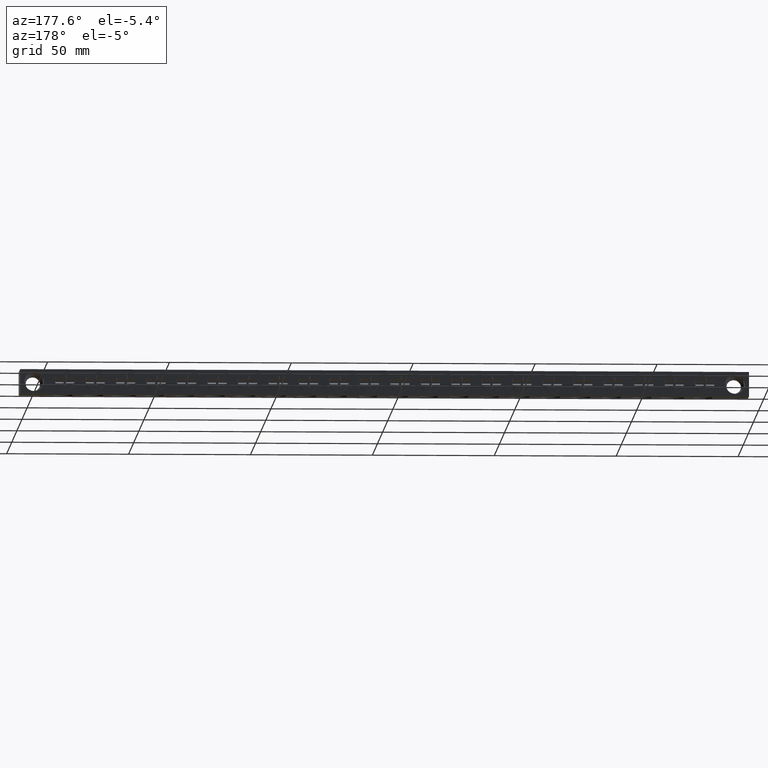
[diagram: clean part render]
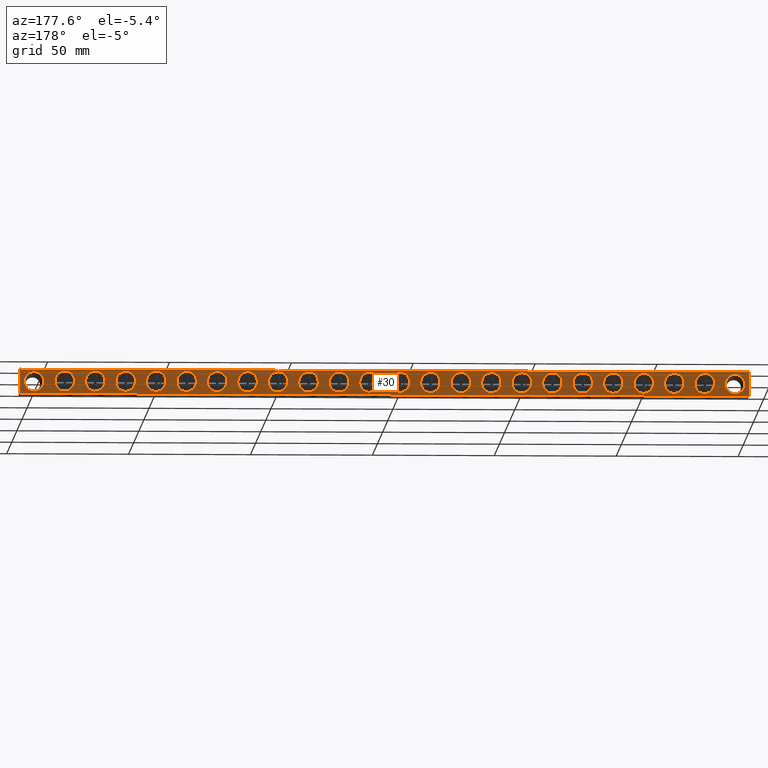
[diagram: same view with one face highlighted and labeled with its STEP entity id]
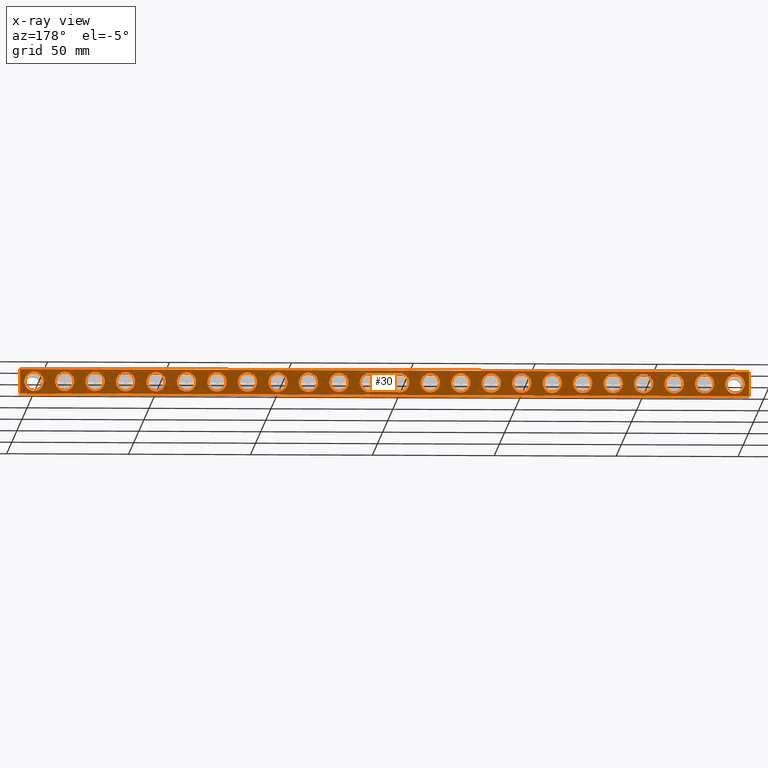
[diagram: x-ray of the same camera — body ghosted, the highlighted face saturated]
A machine part, auxiliary view. The second image highlights one B-rep face of the part: STEP entity #30.
The next image is the same camera in x-ray: the body ghosted, the highlighted face saturated — about 0% of this face is hidden behind the body in this view.
In plain terms, the highlighted planar face has unit normal (0, -1, 0).
Its self-contained STEP definition (entity closure, byte-faithful):
#30 = ADVANCED_FACE ( 'NONE', ( #3002, #2999, #3029, #2996, #3033, #2990, #3005, #2998, #3006, #3012, #2994, #3008, #3018, #3011, #3034, #3024, #2997, #3031, #3032, #3007, #3059, #3061, #3048, #3062, #3076 ), #3082, .F. ) ;
#170 = VERTEX_POINT ( 'NONE', #3101 ) ;
#305 = VERTEX_POINT ( 'NONE', #3154 ) ;
#312 = VERTEX_POINT ( 'NONE', #3176 ) ;
#321 = VERTEX_POINT ( 'NONE', #3177 ) ;
#331 = VERTEX_POINT ( 'NONE', #3157 ) ;
#335 = VERTEX_POINT ( 'NONE', #3200 ) ;
#361 = VERTEX_POINT ( 'NONE', #3256 ) ;
#364 = VERTEX_POINT ( 'NONE', #3253 ) ;
#365 = VERTEX_POINT ( 'NONE', #3240 ) ;
#372 = VERTEX_POINT ( 'NONE', #3220 ) ;
#387 = VERTEX_POINT ( 'NONE', #3259 ) ;
#389 = VERTEX_POINT ( 'NONE', #3269 ) ;
#400 = VERTEX_POINT ( 'NONE', #3247 ) ;
#405 = VERTEX_POINT ( 'NONE', #3262 ) ;
#418 = VERTEX_POINT ( 'NONE', #3312 ) ;
#421 = VERTEX_POINT ( 'NONE', #3288 ) ;
#423 = ORIENTED_EDGE ( 'NONE', *, *, #8522, .F. ) ;
#424 = ORIENTED_EDGE ( 'NONE', *, *, #8551, .F. ) ;
#426 = ORIENTED_EDGE ( 'NONE', *, *, #4077, .F. ) ;
#431 = ORIENTED_EDGE ( 'NONE', *, *, #12135, .F. ) ;
#433 = ORIENTED_EDGE ( 'NONE', *, *, #3741, .F. ) ;
#434 = ORIENTED_EDGE ( 'NONE', *, *, #8559, .F. ) ;
#435 = ORIENTED_EDGE ( 'NONE', *, *, #8538, .F. ) ;
#437 = VERTEX_POINT ( 'NONE', #3271 ) ;
#438 = ORIENTED_EDGE ( 'NONE', *, *, #13542, .F. ) ;
#439 = ORIENTED_EDGE ( 'NONE', *, *, #3715, .F. ) ;
#440 = ORIENTED_EDGE ( 'NONE', *, *, #3750, .F. ) ;
#441 = ORIENTED_EDGE ( 'NONE', *, *, #8557, .F. ) ;
#442 = ORIENTED_EDGE ( 'NONE', *, *, #8562, .F. ) ;
#443 = ORIENTED_EDGE ( 'NONE', *, *, #8521, .F. ) ;
#445 = ORIENTED_EDGE ( 'NONE', *, *, #3692, .F. ) ;
#453 = ORIENTED_EDGE ( 'NONE', *, *, #3689, .F. ) ;
#454 = ORIENTED_EDGE ( 'NONE', *, *, #12121, .F. ) ;
#455 = ORIENTED_EDGE ( 'NONE', *, *, #8536, .F. ) ;
#456 = ORIENTED_EDGE ( 'NONE', *, *, #8573, .F. ) ;
#458 = ORIENTED_EDGE ( 'NONE', *, *, #8561, .F. ) ;
#460 = VERTEX_POINT ( 'NONE', #3315 ) ;
#461 = ORIENTED_EDGE ( 'NONE', *, *, #3961, .F. ) ;
#464 = ORIENTED_EDGE ( 'NONE', *, *, #8541, .F. ) ;
#466 = ORIENTED_EDGE ( 'NONE', *, *, #8570, .F. ) ;
#468 = ORIENTED_EDGE ( 'NONE', *, *, #4043, .F. ) ;
#469 = ORIENTED_EDGE ( 'NONE', *, *, #3671, .F. ) ;
#470 = ORIENTED_EDGE ( 'NONE', *, *, #8530, .F. ) ;
#477 = ORIENTED_EDGE ( 'NONE', *, *, #3700, .F. ) ;
#481 = ORIENTED_EDGE ( 'NONE', *, *, #3727, .F. ) ;
#482 = ORIENTED_EDGE ( 'NONE', *, *, #3699, .F. ) ;
#486 = ORIENTED_EDGE ( 'NONE', *, *, #8524, .F. ) ;
#490 = ORIENTED_EDGE ( 'NONE', *, *, #3731, .F. ) ;
#496 = ORIENTED_EDGE ( 'NONE', *, *, #8537, .F. ) ;
#501 = ORIENTED_EDGE ( 'NONE', *, *, #8546, .F. ) ;
#502 = ORIENTED_EDGE ( 'NONE', *, *, #3738, .F. ) ;
#508 = ORIENTED_EDGE ( 'NONE', *, *, #4053, .F. ) ;
#515 = ORIENTED_EDGE ( 'NONE', *, *, #3722, .F. ) ;
#527 = ORIENTED_EDGE ( 'NONE', *, *, #8555, .F. ) ;
#528 = ORIENTED_EDGE ( 'NONE', *, *, #8572, .F. ) ;
#529 = ORIENTED_EDGE ( 'NONE', *, *, #4045, .F. ) ;
#535 = ORIENTED_EDGE ( 'NONE', *, *, #3661, .F. ) ;
#539 = ORIENTED_EDGE ( 'NONE', *, *, #8548, .F. ) ;
#547 = ORIENTED_EDGE ( 'NONE', *, *, #3648, .F. ) ;
#623 = VERTEX_POINT ( 'NONE', #3307 ) ;
#630 = VERTEX_POINT ( 'NONE', #3314 ) ;
#633 = VERTEX_POINT ( 'NONE', #3278 ) ;
#659 = VERTEX_POINT ( 'NONE', #3352 ) ;
#665 = VERTEX_POINT ( 'NONE', #3371 ) ;
#743 = VERTEX_POINT ( 'NONE', #3430 ) ;
#751 = VERTEX_POINT ( 'NONE', #3420 ) ;
#766 = VERTEX_POINT ( 'NONE', #2959 ) ;
#770 = VERTEX_POINT ( 'NONE', #14621 ) ;
#774 = VERTEX_POINT ( 'NONE', #13938 ) ;
#781 = VERTEX_POINT ( 'NONE', #13986 ) ;
#783 = VERTEX_POINT ( 'NONE', #13982 ) ;
#785 = VERTEX_POINT ( 'NONE', #13943 ) ;
#786 = VERTEX_POINT ( 'NONE', #13971 ) ;
#789 = VERTEX_POINT ( 'NONE', #13966 ) ;
#793 = VERTEX_POINT ( 'NONE', #13962 ) ;
#795 = VERTEX_POINT ( 'NONE', #13954 ) ;
#1313 = ORIENTED_EDGE ( 'NONE', *, *, #12106, .T. ) ;
#1322 = ORIENTED_EDGE ( 'NONE', *, *, #12117, .F. ) ;
#1331 = ORIENTED_EDGE ( 'NONE', *, *, #12119, .T. ) ;
#1346 = ORIENTED_EDGE ( 'NONE', *, *, #4052, .F. ) ;
#1347 = ORIENTED_EDGE ( 'NONE', *, *, #3931, .F. ) ;
#1352 = ORIENTED_EDGE ( 'NONE', *, *, #4035, .F. ) ;
#1356 = ORIENTED_EDGE ( 'NONE', *, *, #12112, .F. ) ;
#1361 = ORIENTED_EDGE ( 'NONE', *, *, #12151, .F. ) ;
#1621 = AXIS2_PLACEMENT_3D ( 'NONE', #9314, #9335, #9331 ) ;
#1630 = AXIS2_PLACEMENT_3D ( 'NONE', #9341, #9360, #9350 ) ;
#1632 = AXIS2_PLACEMENT_3D ( 'NONE', #9333, #9312, #9299 ) ;
#1633 = AXIS2_PLACEMENT_3D ( 'NONE', #9319, #9321, #9320 ) ;
#1636 = CIRCLE ( 'NONE', #1633, 3.960000000000000000 ) ;
#1643 = CIRCLE ( 'NONE', #1632, 3.960000000000000000 ) ;
#1646 = CIRCLE ( 'NONE', #1621, 3.960000000000000000 ) ;
#1661 = CIRCLE ( 'NONE', #1630, 3.960000000000000000 ) ;
#1670 = CIRCLE ( 'NONE', #1722, 3.960000000000000000 ) ;
#1671 = AXIS2_PLACEMENT_3D ( 'NONE', #9375, #9336, #9359 ) ;
#1672 = AXIS2_PLACEMENT_3D ( 'NONE', #9425, #9417, #9445 ) ;
#1675 = AXIS2_PLACEMENT_3D ( 'NONE', #9449, #9450, #9437 ) ;
#1678 = AXIS2_PLACEMENT_3D ( 'NONE', #9419, #9424, #9441 ) ;
#1682 = AXIS2_PLACEMENT_3D ( 'NONE', #9388, #9409, #9389 ) ;
#1690 = CIRCLE ( 'NONE', #1672, 3.960000000000000000 ) ;
#1691 = CIRCLE ( 'NONE', #1718, 3.960000000000000000 ) ;
#1693 = AXIS2_PLACEMENT_3D ( 'NONE', #9439, #9440, #9426 ) ;
#1694 = AXIS2_PLACEMENT_3D ( 'NONE', #9365, #9342, #9371 ) ;
#1698 = CIRCLE ( 'NONE', #1671, 3.960000000000000000 ) ;
#1703 = CIRCLE ( 'NONE', #1704, 3.960000000000000000 ) ;
#1704 = AXIS2_PLACEMENT_3D ( 'NONE', #9368, #9372, #9346 ) ;
#1707 = CIRCLE ( 'NONE', #1694, 3.960000000000000000 ) ;
#1710 = AXIS2_PLACEMENT_3D ( 'NONE', #9349, #9357, #9369 ) ;
#1712 = CIRCLE ( 'NONE', #1682, 3.960000000000000000 ) ;
#1716 = CIRCLE ( 'NONE', #1678, 3.960000000000000000 ) ;
#1717 = CIRCLE ( 'NONE', #1693, 3.960000000000000000 ) ;
#1718 = AXIS2_PLACEMENT_3D ( 'NONE', #9456, #9446, #9436 ) ;
#1721 = CIRCLE ( 'NONE', #1710, 3.960000000000000000 ) ;
#1722 = AXIS2_PLACEMENT_3D ( 'NONE', #9407, #9408, #9382 ) ;
#1724 = AXIS2_PLACEMENT_3D ( 'NONE', #9381, #9387, #9385 ) ;
#1729 = CIRCLE ( 'NONE', #1675, 3.960000000000000000 ) ;
#1730 = CIRCLE ( 'NONE', #1724, 3.960000000000000000 ) ;
#1736 = CIRCLE ( 'NONE', #1770, 3.960000000000000000 ) ;
#1748 = CIRCLE ( 'NONE', #1771, 3.960000000000000000 ) ;
#1758 = AXIS2_PLACEMENT_3D ( 'NONE', #9459, #9480, #9499 ) ;
#1770 = AXIS2_PLACEMENT_3D ( 'NONE', #9485, #9473, #9474 ) ;
#1771 = AXIS2_PLACEMENT_3D ( 'NONE', #9502, #9494, #9460 ) ;
#1778 = CIRCLE ( 'NONE', #1758, 3.960000000000000000 ) ;
#1797 = AXIS2_PLACEMENT_3D ( 'NONE', #8756, #8765, #8760 ) ;
#1798 = VECTOR ( 'NONE', #8658, 1000.000000000000000 ) ;
#1799 = VECTOR ( 'NONE', #8683, 1000.000000000000000 ) ;
#1812 = VECTOR ( 'NONE', #8721, 1000.000000000000000 ) ;
#1828 = CIRCLE ( 'NONE', #1797, 3.960000000000000000 ) ;
#1834 = AXIS2_PLACEMENT_3D ( 'NONE', #8731, #8741, #8727 ) ;
#1845 = VECTOR ( 'NONE', #8661, 1000.000000000000000 ) ;
#1847 = CIRCLE ( 'NONE', #1834, 3.960000000000000000 ) ;
#1858 = CIRCLE ( 'NONE', #1890, 4.000000000000035500 ) ;
#1865 = AXIS2_PLACEMENT_3D ( 'NONE', #8804, #8806, #8816 ) ;
#1872 = AXIS2_PLACEMENT_3D ( 'NONE', #8796, #8797, #8788 ) ;
#1877 = CIRCLE ( 'NONE', #1865, 4.000000000000035500 ) ;
#1890 = AXIS2_PLACEMENT_3D ( 'NONE', #8818, #8795, #8798 ) ;
#1907 = CIRCLE ( 'NONE', #1872, 3.960000000000000000 ) ;
#1979 = AXIS2_PLACEMENT_3D ( 'NONE', #5303, #5281, #5311 ) ;
#2027 = CIRCLE ( 'NONE', #1979, 3.960000000000000000 ) ;
#2505 = VERTEX_POINT ( 'NONE', #14063 ) ;
#2959 = CARTESIAN_POINT ( 'NONE',  ( 172.7500000000000300, 15.00000000000000000, -8.959999999999999100 ) ) ;
#2990 = FACE_BOUND ( 'NONE', #13156, .T. ) ;
#2994 = FACE_BOUND ( 'NONE', #13118, .T. ) ;
#2996 = FACE_BOUND ( 'NONE', #13154, .T. ) ;
#2997 = FACE_BOUND ( 'NONE', #13135, .T. ) ;
#2998 = FACE_BOUND ( 'NONE', #13144, .T. ) ;
#2999 = FACE_OUTER_BOUND ( 'NONE', #13122, .T. ) ;
#3002 = FACE_BOUND ( 'NONE', #13112, .T. ) ;
#3005 = FACE_BOUND ( 'NONE', #13174, .T. ) ;
#3006 = FACE_BOUND ( 'NONE', #13149, .T. ) ;
#3007 = FACE_BOUND ( 'NONE', #13169, .T. ) ;
#3008 = FACE_BOUND ( 'NONE', #13152, .T. ) ;
#3011 = FACE_BOUND ( 'NONE', #13153, .T. ) ;
#3012 = FACE_BOUND ( 'NONE', #13131, .T. ) ;
#3018 = FACE_BOUND ( 'NONE', #13150, .T. ) ;
#3024 = FACE_BOUND ( 'NONE', #13128, .T. ) ;
#3029 = FACE_BOUND ( 'NONE', #13167, .T. ) ;
#3031 = FACE_BOUND ( 'NONE', #13151, .T. ) ;
#3032 = FACE_BOUND ( 'NONE', #13155, .T. ) ;
#3033 = FACE_BOUND ( 'NONE', #13160, .T. ) ;
#3034 = FACE_BOUND ( 'NONE', #13223, .T. ) ;
#3048 = FACE_BOUND ( 'NONE', #13117, .T. ) ;
#3059 = FACE_BOUND ( 'NONE', #13114, .T. ) ;
#3061 = FACE_BOUND ( 'NONE', #13134, .T. ) ;
#3062 = FACE_BOUND ( 'NONE', #13172, .T. ) ;
#3076 = FACE_BOUND ( 'NONE', #13173, .T. ) ;
#3080 = CARTESIAN_POINT ( 'NONE',  ( 0.0000000000000000000, 15.00000000000000000, -10.00000000000000000 ) ) ;
#3082 = PLANE ( 'NONE',  #7064 ) ;
#3089 = DIRECTION ( 'NONE',  ( 0.0000000000000000000, -1.000000000000000000, 0.0000000000000000000 ) ) ;
#3095 = DIRECTION ( 'NONE',  ( 0.0000000000000000000, -0.0000000000000000000, -1.000000000000000000 ) ) ;
#3101 = CARTESIAN_POINT ( 'NONE',  ( 47.75000000000000700, 15.00000000000000000, -8.959999999999999100 ) ) ;
#3154 = CARTESIAN_POINT ( 'NONE',  ( 72.75000000000001400, 15.00000000000000000, -1.040000000000000000 ) ) ;
#3157 = CARTESIAN_POINT ( 'NONE',  ( 60.25000000000002800, 15.00000000000000000, -1.040000000000000000 ) ) ;
#3176 = CARTESIAN_POINT ( 'NONE',  ( 60.25000000000002800, 15.00000000000000000, -8.959999999999999100 ) ) ;
#3177 = CARTESIAN_POINT ( 'NONE',  ( 85.25000000000000000, 15.00000000000000000, -1.040000000000000000 ) ) ;
#3200 = CARTESIAN_POINT ( 'NONE',  ( 72.75000000000001400, 15.00000000000000000, -8.959999999999999100 ) ) ;
#3220 = CARTESIAN_POINT ( 'NONE',  ( 235.2500000000000300, 15.00000000000000000, -1.040000000000000000 ) ) ;
#3240 = CARTESIAN_POINT ( 'NONE',  ( 260.2500000000000600, 15.00000000000000000, -1.040000000000000000 ) ) ;
#3247 = CARTESIAN_POINT ( 'NONE',  ( 247.7500000000000300, 15.00000000000000000, -8.959999999999999100 ) ) ;
#3253 = CARTESIAN_POINT ( 'NONE',  ( 235.2500000000000300, 15.00000000000000000, -8.959999999999999100 ) ) ;
#3256 = CARTESIAN_POINT ( 'NONE',  ( 135.2500000000000000, 15.00000000000000000, -8.959999999999999100 ) ) ;
#3259 = CARTESIAN_POINT ( 'NONE',  ( 135.2500000000000000, 15.00000000000000000, -1.040000000000000000 ) ) ;
#3262 = CARTESIAN_POINT ( 'NONE',  ( 222.7500000000000000, 15.00000000000000000, -8.959999999999999100 ) ) ;
#3269 = CARTESIAN_POINT ( 'NONE',  ( 210.2500000000000000, 15.00000000000000000, -8.959999999999999100 ) ) ;
#3271 = CARTESIAN_POINT ( 'NONE',  ( 247.7500000000000300, 15.00000000000000000, -1.040000000000000000 ) ) ;
#3278 = CARTESIAN_POINT ( 'NONE',  ( 122.7500000000000100, 15.00000000000000000, -1.040000000000000000 ) ) ;
#3288 = CARTESIAN_POINT ( 'NONE',  ( 210.2500000000000000, 15.00000000000000000, -1.040000000000000000 ) ) ;
#3307 = CARTESIAN_POINT ( 'NONE',  ( 110.2500000000000100, 15.00000000000000000, -1.040000000000000000 ) ) ;
#3312 = CARTESIAN_POINT ( 'NONE',  ( 260.2500000000000600, 15.00000000000000000, -8.959999999999999100 ) ) ;
#3314 = CARTESIAN_POINT ( 'NONE',  ( 110.2500000000000100, 15.00000000000000000, -8.959999999999999100 ) ) ;
#3315 = CARTESIAN_POINT ( 'NONE',  ( 222.7500000000000000, 15.00000000000000000, -1.040000000000000000 ) ) ;
#3352 = CARTESIAN_POINT ( 'NONE',  ( 97.75000000000001400, 15.00000000000000000, -1.040000000000000000 ) ) ;
#3371 = CARTESIAN_POINT ( 'NONE',  ( 97.75000000000001400, 15.00000000000000000, -8.959999999999999100 ) ) ;
#3420 = CARTESIAN_POINT ( 'NONE',  ( 185.2500000000000300, 15.00000000000000000, -8.959999999999999100 ) ) ;
#3430 = CARTESIAN_POINT ( 'NONE',  ( 285.2500000000000000, 15.00000000000000000, -8.959999999999999100 ) ) ;
#3648 = EDGE_CURVE ( 'NONE', #387, #361, #7156, .T. ) ;
#3661 = EDGE_CURVE ( 'NONE', #437, #400, #7215, .T. ) ;
#3671 = EDGE_CURVE ( 'NONE', #633, #12516, #7248, .T. ) ;
#3689 = EDGE_CURVE ( 'NONE', #623, #630, #7211, .T. ) ;
#3692 = EDGE_CURVE ( 'NONE', #460, #405, #7289, .T. ) ;
#3699 = EDGE_CURVE ( 'NONE', #421, #389, #7257, .T. ) ;
#3700 = EDGE_CURVE ( 'NONE', #365, #418, #7261, .T. ) ;
#3715 = EDGE_CURVE ( 'NONE', #770, #781, #7262, .T. ) ;
#3722 = EDGE_CURVE ( 'NONE', #786, #743, #6335, .T. ) ;
#3727 = EDGE_CURVE ( 'NONE', #774, #793, #6380, .T. ) ;
#3731 = EDGE_CURVE ( 'NONE', #12687, #12634, #6361, .T. ) ;
#3738 = EDGE_CURVE ( 'NONE', #783, #795, #6384, .T. ) ;
#3741 = EDGE_CURVE ( 'NONE', #789, #766, #6377, .T. ) ;
#3750 = EDGE_CURVE ( 'NONE', #785, #751, #6381, .T. ) ;
#3931 = EDGE_CURVE ( 'NONE', #12440, #12447, #6592, .T. ) ;
#3961 = EDGE_CURVE ( 'NONE', #12534, #170, #6680, .T. ) ;
#3993 = EDGE_CURVE ( 'NONE', #12535, #12523, #6725, .T. ) ;
#4035 = EDGE_CURVE ( 'NONE', #12533, #12517, #6803, .T. ) ;
#4043 = EDGE_CURVE ( 'NONE', #659, #665, #6769, .T. ) ;
#4045 = EDGE_CURVE ( 'NONE', #321, #2505, #6799, .T. ) ;
#4052 = EDGE_CURVE ( 'NONE', #12543, #12524, #6770, .T. ) ;
#4053 = EDGE_CURVE ( 'NONE', #305, #335, #6789, .T. ) ;
#4077 = EDGE_CURVE ( 'NONE', #331, #312, #6827, .T. ) ;
#5281 = DIRECTION ( 'NONE',  ( 0.0000000000000000000, 1.000000000000000000, 0.0000000000000000000 ) ) ;
#5303 = CARTESIAN_POINT ( 'NONE',  ( 235.2500000000000300, 15.00000000000000000, -5.000000000000000000 ) ) ;
#5311 = DIRECTION ( 'NONE',  ( 0.0000000000000000000, 0.0000000000000000000, 1.000000000000000000 ) ) ;
#5557 = DIRECTION ( 'NONE',  ( 0.0000000000000000000, 0.0000000000000000000, 1.000000000000000000 ) ) ;
#6335 = CIRCLE ( 'NONE', #6359, 3.960000000000000000 ) ;
#6341 = AXIS2_PLACEMENT_3D ( 'NONE', #10657, #10646, #10660 ) ;
#6345 = AXIS2_PLACEMENT_3D ( 'NONE', #10585, #10587, #10586 ) ;
#6350 = AXIS2_PLACEMENT_3D ( 'NONE', #10623, #10619, #10613 ) ;
#6351 = AXIS2_PLACEMENT_3D ( 'NONE', #10591, #10602, #10596 ) ;
#6358 = AXIS2_PLACEMENT_3D ( 'NONE', #10626, #10621, #10625 ) ;
#6359 = AXIS2_PLACEMENT_3D ( 'NONE', #10578, #10583, #10570 ) ;
#6361 = CIRCLE ( 'NONE', #6351, 3.960000000000000000 ) ;
#6377 = CIRCLE ( 'NONE', #6350, 3.960000000000000000 ) ;
#6380 = CIRCLE ( 'NONE', #6345, 3.960000000000000000 ) ;
#6381 = CIRCLE ( 'NONE', #6341, 3.960000000000000000 ) ;
#6384 = CIRCLE ( 'NONE', #6358, 3.960000000000000000 ) ;
#6592 = CIRCLE ( 'NONE', #6595, 4.000000000000035500 ) ;
#6595 = AXIS2_PLACEMENT_3D ( 'NONE', #11824, #12027, #5557 ) ;
#6668 = AXIS2_PLACEMENT_3D ( 'NONE', #7605, #7619, #7639 ) ;
#6680 = CIRCLE ( 'NONE', #6668, 3.960000000000000000 ) ;
#6725 = CIRCLE ( 'NONE', #6728, 4.000000000000035500 ) ;
#6728 = AXIS2_PLACEMENT_3D ( 'NONE', #7683, #7691, #7679 ) ;
#6761 = AXIS2_PLACEMENT_3D ( 'NONE', #7889, #7886, #7894 ) ;
#6769 = CIRCLE ( 'NONE', #6761, 3.960000000000000000 ) ;
#6770 = CIRCLE ( 'NONE', #6782, 3.960000000000000000 ) ;
#6782 = AXIS2_PLACEMENT_3D ( 'NONE', #7868, #7854, #7870 ) ;
#6788 = AXIS2_PLACEMENT_3D ( 'NONE', #7866, #7858, #7867 ) ;
#6789 = CIRCLE ( 'NONE', #6788, 3.960000000000000000 ) ;
#6799 = CIRCLE ( 'NONE', #6813, 3.960000000000000000 ) ;
#6803 = CIRCLE ( 'NONE', #6822, 3.960000000000000000 ) ;
#6813 = AXIS2_PLACEMENT_3D ( 'NONE', #7862, #7873, #7869 ) ;
#6822 = AXIS2_PLACEMENT_3D ( 'NONE', #7831, #7844, #7838 ) ;
#6827 = CIRCLE ( 'NONE', #6828, 3.960000000000000000 ) ;
#6828 = AXIS2_PLACEMENT_3D ( 'NONE', #7954, #7978, #7958 ) ;
#7064 = AXIS2_PLACEMENT_3D ( 'NONE', #3080, #3089, #3095 ) ;
#7156 = CIRCLE ( 'NONE', #7222, 3.960000000000000000 ) ;
#7211 = CIRCLE ( 'NONE', #7232, 3.960000000000000000 ) ;
#7215 = CIRCLE ( 'NONE', #7223, 3.960000000000000000 ) ;
#7216 = AXIS2_PLACEMENT_3D ( 'NONE', #11874, #11875, #11887 ) ;
#7222 = AXIS2_PLACEMENT_3D ( 'NONE', #12094, #12092, #12093 ) ;
#7223 = AXIS2_PLACEMENT_3D ( 'NONE', #11858, #11828, #11841 ) ;
#7232 = AXIS2_PLACEMENT_3D ( 'NONE', #11937, #11912, #11931 ) ;
#7248 = CIRCLE ( 'NONE', #7216, 3.960000000000000000 ) ;
#7257 = CIRCLE ( 'NONE', #7283, 3.960000000000000000 ) ;
#7261 = CIRCLE ( 'NONE', #7284, 3.960000000000000000 ) ;
#7262 = CIRCLE ( 'NONE', #7268, 3.960000000000000000 ) ;
#7268 = AXIS2_PLACEMENT_3D ( 'NONE', #12024, #12028, #12022 ) ;
#7271 = AXIS2_PLACEMENT_3D ( 'NONE', #11940, #11945, #11910 ) ;
#7283 = AXIS2_PLACEMENT_3D ( 'NONE', #11962, #11980, #11954 ) ;
#7284 = AXIS2_PLACEMENT_3D ( 'NONE', #11967, #11968, #11958 ) ;
#7289 = CIRCLE ( 'NONE', #7271, 3.960000000000000000 ) ;
#7605 = CARTESIAN_POINT ( 'NONE',  ( 47.75000000000000700, 15.00000000000000000, -5.000000000000000000 ) ) ;
#7619 = DIRECTION ( 'NONE',  ( 0.0000000000000000000, 1.000000000000000000, 0.0000000000000000000 ) ) ;
#7639 = DIRECTION ( 'NONE',  ( 0.0000000000000000000, 0.0000000000000000000, 1.000000000000000000 ) ) ;
#7679 = DIRECTION ( 'NONE',  ( 0.0000000000000000000, 0.0000000000000000000, 1.000000000000000000 ) ) ;
#7683 = CARTESIAN_POINT ( 'NONE',  ( 297.7500000000000000, 15.00000000000000000, -5.000000000000000000 ) ) ;
#7691 = DIRECTION ( 'NONE',  ( 0.0000000000000000000, 1.000000000000000000, 0.0000000000000000000 ) ) ;
#7831 = CARTESIAN_POINT ( 'NONE',  ( 22.75000000000000700, 15.00000000000000000, -5.000000000000000000 ) ) ;
#7838 = DIRECTION ( 'NONE',  ( 0.0000000000000000000, 0.0000000000000000000, 1.000000000000000000 ) ) ;
#7844 = DIRECTION ( 'NONE',  ( 0.0000000000000000000, 1.000000000000000000, 0.0000000000000000000 ) ) ;
#7854 = DIRECTION ( 'NONE',  ( 0.0000000000000000000, 1.000000000000000000, 0.0000000000000000000 ) ) ;
#7858 = DIRECTION ( 'NONE',  ( 0.0000000000000000000, 1.000000000000000000, 0.0000000000000000000 ) ) ;
#7862 = CARTESIAN_POINT ( 'NONE',  ( 85.25000000000000000, 15.00000000000000000, -5.000000000000000000 ) ) ;
#7866 = CARTESIAN_POINT ( 'NONE',  ( 72.75000000000001400, 15.00000000000000000, -5.000000000000000000 ) ) ;
#7867 = DIRECTION ( 'NONE',  ( 0.0000000000000000000, 0.0000000000000000000, 1.000000000000000000 ) ) ;
#7868 = CARTESIAN_POINT ( 'NONE',  ( 35.25000000000000000, 15.00000000000000000, -5.000000000000000000 ) ) ;
#7869 = DIRECTION ( 'NONE',  ( 0.0000000000000000000, 0.0000000000000000000, 1.000000000000000000 ) ) ;
#7870 = DIRECTION ( 'NONE',  ( 0.0000000000000000000, 0.0000000000000000000, 1.000000000000000000 ) ) ;
#7873 = DIRECTION ( 'NONE',  ( 0.0000000000000000000, 1.000000000000000000, 0.0000000000000000000 ) ) ;
#7886 = DIRECTION ( 'NONE',  ( 0.0000000000000000000, 1.000000000000000000, 0.0000000000000000000 ) ) ;
#7889 = CARTESIAN_POINT ( 'NONE',  ( 97.75000000000001400, 15.00000000000000000, -5.000000000000000000 ) ) ;
#7894 = DIRECTION ( 'NONE',  ( 0.0000000000000000000, 0.0000000000000000000, 1.000000000000000000 ) ) ;
#7954 = CARTESIAN_POINT ( 'NONE',  ( 60.25000000000002800, 15.00000000000000000, -5.000000000000000000 ) ) ;
#7958 = DIRECTION ( 'NONE',  ( 0.0000000000000000000, 0.0000000000000000000, 1.000000000000000000 ) ) ;
#7978 = DIRECTION ( 'NONE',  ( 0.0000000000000000000, 1.000000000000000000, 0.0000000000000000000 ) ) ;
#8521 = EDGE_CURVE ( 'NONE', #793, #774, #1643, .T. ) ;
#8522 = EDGE_CURVE ( 'NONE', #400, #437, #1636, .T. ) ;
#8524 = EDGE_CURVE ( 'NONE', #12516, #633, #1646, .T. ) ;
#8530 = EDGE_CURVE ( 'NONE', #630, #623, #1661, .T. ) ;
#8536 = EDGE_CURVE ( 'NONE', #751, #785, #1707, .T. ) ;
#8537 = EDGE_CURVE ( 'NONE', #361, #387, #1721, .T. ) ;
#8538 = EDGE_CURVE ( 'NONE', #795, #783, #1698, .T. ) ;
#8541 = EDGE_CURVE ( 'NONE', #766, #789, #1703, .T. ) ;
#8546 = EDGE_CURVE ( 'NONE', #743, #786, #1670, .T. ) ;
#8548 = EDGE_CURVE ( 'NONE', #781, #770, #1730, .T. ) ;
#8551 = EDGE_CURVE ( 'NONE', #389, #421, #1712, .T. ) ;
#8555 = EDGE_CURVE ( 'NONE', #405, #460, #1690, .T. ) ;
#8557 = EDGE_CURVE ( 'NONE', #12634, #12687, #1691, .T. ) ;
#8559 = EDGE_CURVE ( 'NONE', #335, #305, #1729, .T. ) ;
#8561 = EDGE_CURVE ( 'NONE', #364, #372, #1716, .T. ) ;
#8562 = EDGE_CURVE ( 'NONE', #312, #331, #1717, .T. ) ;
#8570 = EDGE_CURVE ( 'NONE', #665, #659, #1736, .T. ) ;
#8572 = EDGE_CURVE ( 'NONE', #2505, #321, #1778, .T. ) ;
#8573 = EDGE_CURVE ( 'NONE', #418, #365, #1748, .T. ) ;
#8658 = DIRECTION ( 'NONE',  ( 0.0000000000000000000, -0.0000000000000000000, -1.000000000000000000 ) ) ;
#8661 = DIRECTION ( 'NONE',  ( 1.000000000000000000, -0.0000000000000000000, 0.0000000000000000000 ) ) ;
#8682 = CARTESIAN_POINT ( 'NONE',  ( 0.0000000000000000000, 15.00000000000000000, -10.00000000000000000 ) ) ;
#8683 = DIRECTION ( 'NONE',  ( 1.000000000000000000, 0.0000000000000000000, 0.0000000000000000000 ) ) ;
#8691 = LINE ( 'NONE', #8696, #1812 ) ;
#8692 = LINE ( 'NONE', #8682, #1799 ) ;
#8693 = CARTESIAN_POINT ( 'NONE',  ( 4.500000000000001800, 15.00000000000000000, -10.00000000000000000 ) ) ;
#8696 = CARTESIAN_POINT ( 'NONE',  ( 303.5000000000000000, 15.00000000000000000, 0.0000000000000000000 ) ) ;
#8698 = LINE ( 'NONE', #8693, #1798 ) ;
#8721 = DIRECTION ( 'NONE',  ( -0.0000000000000000000, -0.0000000000000000000, -1.000000000000000000 ) ) ;
#8727 = DIRECTION ( 'NONE',  ( 0.0000000000000000000, 0.0000000000000000000, 1.000000000000000000 ) ) ;
#8731 = CARTESIAN_POINT ( 'NONE',  ( 47.75000000000000700, 15.00000000000000000, -5.000000000000000000 ) ) ;
#8741 = DIRECTION ( 'NONE',  ( 0.0000000000000000000, 1.000000000000000000, 0.0000000000000000000 ) ) ;
#8756 = CARTESIAN_POINT ( 'NONE',  ( 35.25000000000000000, 15.00000000000000000, -5.000000000000000000 ) ) ;
#8760 = DIRECTION ( 'NONE',  ( 0.0000000000000000000, 0.0000000000000000000, 1.000000000000000000 ) ) ;
#8765 = DIRECTION ( 'NONE',  ( 0.0000000000000000000, 1.000000000000000000, 0.0000000000000000000 ) ) ;
#8788 = DIRECTION ( 'NONE',  ( 0.0000000000000000000, 0.0000000000000000000, 1.000000000000000000 ) ) ;
#8795 = DIRECTION ( 'NONE',  ( 0.0000000000000000000, 1.000000000000000000, 0.0000000000000000000 ) ) ;
#8796 = CARTESIAN_POINT ( 'NONE',  ( 22.75000000000000700, 15.00000000000000000, -5.000000000000000000 ) ) ;
#8797 = DIRECTION ( 'NONE',  ( 0.0000000000000000000, 1.000000000000000000, 0.0000000000000000000 ) ) ;
#8798 = DIRECTION ( 'NONE',  ( 0.0000000000000000000, 0.0000000000000000000, 1.000000000000000000 ) ) ;
#8804 = CARTESIAN_POINT ( 'NONE',  ( 10.25000000000000200, 15.00000000000000000, -5.000000000000000000 ) ) ;
#8806 = DIRECTION ( 'NONE',  ( 0.0000000000000000000, 1.000000000000000000, 0.0000000000000000000 ) ) ;
#8808 = CARTESIAN_POINT ( 'NONE',  ( 10.25000000000000200, 15.00000000000000000, -0.9999999999999644700 ) ) ;
#8816 = DIRECTION ( 'NONE',  ( 0.0000000000000000000, 0.0000000000000000000, 1.000000000000000000 ) ) ;
#8818 = CARTESIAN_POINT ( 'NONE',  ( 297.7500000000000000, 15.00000000000000000, -5.000000000000000000 ) ) ;
#8827 = CARTESIAN_POINT ( 'NONE',  ( 10.25000000000000200, 15.00000000000000000, -9.000000000000035500 ) ) ;
#8830 = CARTESIAN_POINT ( 'NONE',  ( 122.7500000000000100, 15.00000000000000000, -8.959999999999999100 ) ) ;
#8834 = CARTESIAN_POINT ( 'NONE',  ( 22.75000000000000700, 15.00000000000000000, -1.040000000000000000 ) ) ;
#8858 = CARTESIAN_POINT ( 'NONE',  ( 35.25000000000000000, 15.00000000000000000, -1.040000000000000000 ) ) ;
#8862 = CARTESIAN_POINT ( 'NONE',  ( 297.7500000000000000, 15.00000000000000000, -0.9999999999999644700 ) ) ;
#8866 = CARTESIAN_POINT ( 'NONE',  ( 297.7500000000000000, 15.00000000000000000, -9.000000000000035500 ) ) ;
#8873 = CARTESIAN_POINT ( 'NONE',  ( 22.75000000000000700, 15.00000000000000000, -8.959999999999999100 ) ) ;
#8874 = CARTESIAN_POINT ( 'NONE',  ( 47.75000000000000700, 15.00000000000000000, -1.040000000000000000 ) ) ;
#8876 = CARTESIAN_POINT ( 'NONE',  ( 35.25000000000000000, 15.00000000000000000, -8.959999999999999100 ) ) ;
#8908 = CARTESIAN_POINT ( 'NONE',  ( 147.7500000000000000, 15.00000000000000000, -8.959999999999999100 ) ) ;
#8957 = CARTESIAN_POINT ( 'NONE',  ( 147.7500000000000000, 15.00000000000000000, -1.040000000000000000 ) ) ;
#9037 = CARTESIAN_POINT ( 'NONE',  ( 4.500000000000001800, 15.00000000000000000, 0.0000000000000000000 ) ) ;
#9040 = CARTESIAN_POINT ( 'NONE',  ( 4.500000000000001800, 15.00000000000000000, -10.00000000000000000 ) ) ;
#9066 = CARTESIAN_POINT ( 'NONE',  ( 303.5000000000000000, 15.00000000000000000, -10.00000000000000000 ) ) ;
#9080 = CARTESIAN_POINT ( 'NONE',  ( 303.5000000000000000, 15.00000000000000000, 0.0000000000000000000 ) ) ;
#9299 = DIRECTION ( 'NONE',  ( 0.0000000000000000000, 0.0000000000000000000, 1.000000000000000000 ) ) ;
#9312 = DIRECTION ( 'NONE',  ( 0.0000000000000000000, 1.000000000000000000, 0.0000000000000000000 ) ) ;
#9314 = CARTESIAN_POINT ( 'NONE',  ( 122.7500000000000100, 15.00000000000000000, -5.000000000000000000 ) ) ;
#9319 = CARTESIAN_POINT ( 'NONE',  ( 247.7500000000000300, 15.00000000000000000, -5.000000000000000000 ) ) ;
#9320 = DIRECTION ( 'NONE',  ( 0.0000000000000000000, 0.0000000000000000000, 1.000000000000000000 ) ) ;
#9321 = DIRECTION ( 'NONE',  ( 0.0000000000000000000, 1.000000000000000000, 0.0000000000000000000 ) ) ;
#9331 = DIRECTION ( 'NONE',  ( 0.0000000000000000000, 0.0000000000000000000, 1.000000000000000000 ) ) ;
#9333 = CARTESIAN_POINT ( 'NONE',  ( 160.2500000000000000, 15.00000000000000000, -5.000000000000000000 ) ) ;
#9335 = DIRECTION ( 'NONE',  ( 0.0000000000000000000, 1.000000000000000000, 0.0000000000000000000 ) ) ;
#9336 = DIRECTION ( 'NONE',  ( 0.0000000000000000000, 1.000000000000000000, 0.0000000000000000000 ) ) ;
#9341 = CARTESIAN_POINT ( 'NONE',  ( 110.2500000000000100, 15.00000000000000000, -5.000000000000000000 ) ) ;
#9342 = DIRECTION ( 'NONE',  ( 0.0000000000000000000, 1.000000000000000000, 0.0000000000000000000 ) ) ;
#9346 = DIRECTION ( 'NONE',  ( 0.0000000000000000000, 0.0000000000000000000, 1.000000000000000000 ) ) ;
#9349 = CARTESIAN_POINT ( 'NONE',  ( 135.2500000000000000, 15.00000000000000000, -5.000000000000000000 ) ) ;
#9350 = DIRECTION ( 'NONE',  ( 0.0000000000000000000, 0.0000000000000000000, 1.000000000000000000 ) ) ;
#9357 = DIRECTION ( 'NONE',  ( 0.0000000000000000000, 1.000000000000000000, 0.0000000000000000000 ) ) ;
#9359 = DIRECTION ( 'NONE',  ( 0.0000000000000000000, 0.0000000000000000000, 1.000000000000000000 ) ) ;
#9360 = DIRECTION ( 'NONE',  ( 0.0000000000000000000, 1.000000000000000000, 0.0000000000000000000 ) ) ;
#9365 = CARTESIAN_POINT ( 'NONE',  ( 185.2500000000000300, 15.00000000000000000, -5.000000000000000000 ) ) ;
#9368 = CARTESIAN_POINT ( 'NONE',  ( 172.7500000000000300, 15.00000000000000000, -5.000000000000000000 ) ) ;
#9369 = DIRECTION ( 'NONE',  ( 0.0000000000000000000, 0.0000000000000000000, 1.000000000000000000 ) ) ;
#9371 = DIRECTION ( 'NONE',  ( 0.0000000000000000000, 0.0000000000000000000, 1.000000000000000000 ) ) ;
#9372 = DIRECTION ( 'NONE',  ( 0.0000000000000000000, 1.000000000000000000, 0.0000000000000000000 ) ) ;
#9375 = CARTESIAN_POINT ( 'NONE',  ( 197.7500000000000300, 15.00000000000000000, -5.000000000000000000 ) ) ;
#9381 = CARTESIAN_POINT ( 'NONE',  ( 272.7500000000000000, 15.00000000000000000, -5.000000000000000000 ) ) ;
#9382 = DIRECTION ( 'NONE',  ( 0.0000000000000000000, 0.0000000000000000000, 1.000000000000000000 ) ) ;
#9385 = DIRECTION ( 'NONE',  ( 0.0000000000000000000, 0.0000000000000000000, 1.000000000000000000 ) ) ;
#9387 = DIRECTION ( 'NONE',  ( 0.0000000000000000000, 1.000000000000000000, 0.0000000000000000000 ) ) ;
#9388 = CARTESIAN_POINT ( 'NONE',  ( 210.2500000000000000, 15.00000000000000000, -5.000000000000000000 ) ) ;
#9389 = DIRECTION ( 'NONE',  ( 0.0000000000000000000, 0.0000000000000000000, 1.000000000000000000 ) ) ;
#9407 = CARTESIAN_POINT ( 'NONE',  ( 285.2500000000000000, 15.00000000000000000, -5.000000000000000000 ) ) ;
#9408 = DIRECTION ( 'NONE',  ( 0.0000000000000000000, 1.000000000000000000, 0.0000000000000000000 ) ) ;
#9409 = DIRECTION ( 'NONE',  ( 0.0000000000000000000, 1.000000000000000000, 0.0000000000000000000 ) ) ;
#9417 = DIRECTION ( 'NONE',  ( 0.0000000000000000000, 1.000000000000000000, 0.0000000000000000000 ) ) ;
#9419 = CARTESIAN_POINT ( 'NONE',  ( 235.2500000000000300, 15.00000000000000000, -5.000000000000000000 ) ) ;
#9424 = DIRECTION ( 'NONE',  ( 0.0000000000000000000, 1.000000000000000000, 0.0000000000000000000 ) ) ;
#9425 = CARTESIAN_POINT ( 'NONE',  ( 222.7500000000000000, 15.00000000000000000, -5.000000000000000000 ) ) ;
#9426 = DIRECTION ( 'NONE',  ( 0.0000000000000000000, 0.0000000000000000000, 1.000000000000000000 ) ) ;
#9436 = DIRECTION ( 'NONE',  ( 0.0000000000000000000, 0.0000000000000000000, 1.000000000000000000 ) ) ;
#9437 = DIRECTION ( 'NONE',  ( 0.0000000000000000000, 0.0000000000000000000, 1.000000000000000000 ) ) ;
#9439 = CARTESIAN_POINT ( 'NONE',  ( 60.25000000000002800, 15.00000000000000000, -5.000000000000000000 ) ) ;
#9440 = DIRECTION ( 'NONE',  ( 0.0000000000000000000, 1.000000000000000000, 0.0000000000000000000 ) ) ;
#9441 = DIRECTION ( 'NONE',  ( 0.0000000000000000000, 0.0000000000000000000, 1.000000000000000000 ) ) ;
#9445 = DIRECTION ( 'NONE',  ( 0.0000000000000000000, 0.0000000000000000000, 1.000000000000000000 ) ) ;
#9446 = DIRECTION ( 'NONE',  ( 0.0000000000000000000, 1.000000000000000000, 0.0000000000000000000 ) ) ;
#9449 = CARTESIAN_POINT ( 'NONE',  ( 72.75000000000001400, 15.00000000000000000, -5.000000000000000000 ) ) ;
#9450 = DIRECTION ( 'NONE',  ( 0.0000000000000000000, 1.000000000000000000, 0.0000000000000000000 ) ) ;
#9456 = CARTESIAN_POINT ( 'NONE',  ( 147.7500000000000000, 15.00000000000000000, -5.000000000000000000 ) ) ;
#9459 = CARTESIAN_POINT ( 'NONE',  ( 85.25000000000000000, 15.00000000000000000, -5.000000000000000000 ) ) ;
#9460 = DIRECTION ( 'NONE',  ( 0.0000000000000000000, 0.0000000000000000000, 1.000000000000000000 ) ) ;
#9473 = DIRECTION ( 'NONE',  ( 0.0000000000000000000, 1.000000000000000000, 0.0000000000000000000 ) ) ;
#9474 = DIRECTION ( 'NONE',  ( 0.0000000000000000000, 0.0000000000000000000, 1.000000000000000000 ) ) ;
#9480 = DIRECTION ( 'NONE',  ( 0.0000000000000000000, 1.000000000000000000, 0.0000000000000000000 ) ) ;
#9485 = CARTESIAN_POINT ( 'NONE',  ( 97.75000000000001400, 15.00000000000000000, -5.000000000000000000 ) ) ;
#9494 = DIRECTION ( 'NONE',  ( 0.0000000000000000000, 1.000000000000000000, 0.0000000000000000000 ) ) ;
#9499 = DIRECTION ( 'NONE',  ( 0.0000000000000000000, 0.0000000000000000000, 1.000000000000000000 ) ) ;
#9502 = CARTESIAN_POINT ( 'NONE',  ( 260.2500000000000600, 15.00000000000000000, -5.000000000000000000 ) ) ;
#9730 = LINE ( 'NONE', #9735, #1845 ) ;
#9735 = CARTESIAN_POINT ( 'NONE',  ( 0.0000000000000000000, 15.00000000000000000, 0.0000000000000000000 ) ) ;
#10570 = DIRECTION ( 'NONE',  ( 0.0000000000000000000, 0.0000000000000000000, 1.000000000000000000 ) ) ;
#10578 = CARTESIAN_POINT ( 'NONE',  ( 285.2500000000000000, 15.00000000000000000, -5.000000000000000000 ) ) ;
#10583 = DIRECTION ( 'NONE',  ( 0.0000000000000000000, 1.000000000000000000, 0.0000000000000000000 ) ) ;
#10585 = CARTESIAN_POINT ( 'NONE',  ( 160.2500000000000000, 15.00000000000000000, -5.000000000000000000 ) ) ;
#10586 = DIRECTION ( 'NONE',  ( 0.0000000000000000000, 0.0000000000000000000, 1.000000000000000000 ) ) ;
#10587 = DIRECTION ( 'NONE',  ( 0.0000000000000000000, 1.000000000000000000, 0.0000000000000000000 ) ) ;
#10591 = CARTESIAN_POINT ( 'NONE',  ( 147.7500000000000000, 15.00000000000000000, -5.000000000000000000 ) ) ;
#10596 = DIRECTION ( 'NONE',  ( 0.0000000000000000000, 0.0000000000000000000, 1.000000000000000000 ) ) ;
#10602 = DIRECTION ( 'NONE',  ( 0.0000000000000000000, 1.000000000000000000, 0.0000000000000000000 ) ) ;
#10613 = DIRECTION ( 'NONE',  ( 0.0000000000000000000, 0.0000000000000000000, 1.000000000000000000 ) ) ;
#10619 = DIRECTION ( 'NONE',  ( 0.0000000000000000000, 1.000000000000000000, 0.0000000000000000000 ) ) ;
#10621 = DIRECTION ( 'NONE',  ( 0.0000000000000000000, 1.000000000000000000, 0.0000000000000000000 ) ) ;
#10623 = CARTESIAN_POINT ( 'NONE',  ( 172.7500000000000300, 15.00000000000000000, -5.000000000000000000 ) ) ;
#10625 = DIRECTION ( 'NONE',  ( 0.0000000000000000000, 0.0000000000000000000, 1.000000000000000000 ) ) ;
#10626 = CARTESIAN_POINT ( 'NONE',  ( 197.7500000000000300, 15.00000000000000000, -5.000000000000000000 ) ) ;
#10646 = DIRECTION ( 'NONE',  ( 0.0000000000000000000, 1.000000000000000000, 0.0000000000000000000 ) ) ;
#10657 = CARTESIAN_POINT ( 'NONE',  ( 185.2500000000000300, 15.00000000000000000, -5.000000000000000000 ) ) ;
#10660 = DIRECTION ( 'NONE',  ( 0.0000000000000000000, 0.0000000000000000000, 1.000000000000000000 ) ) ;
#11824 = CARTESIAN_POINT ( 'NONE',  ( 10.25000000000000200, 15.00000000000000000, -5.000000000000000000 ) ) ;
#11828 = DIRECTION ( 'NONE',  ( 0.0000000000000000000, 1.000000000000000000, 0.0000000000000000000 ) ) ;
#11841 = DIRECTION ( 'NONE',  ( 0.0000000000000000000, 0.0000000000000000000, 1.000000000000000000 ) ) ;
#11858 = CARTESIAN_POINT ( 'NONE',  ( 247.7500000000000300, 15.00000000000000000, -5.000000000000000000 ) ) ;
#11874 = CARTESIAN_POINT ( 'NONE',  ( 122.7500000000000100, 15.00000000000000000, -5.000000000000000000 ) ) ;
#11875 = DIRECTION ( 'NONE',  ( 0.0000000000000000000, 1.000000000000000000, 0.0000000000000000000 ) ) ;
#11887 = DIRECTION ( 'NONE',  ( 0.0000000000000000000, 0.0000000000000000000, 1.000000000000000000 ) ) ;
#11910 = DIRECTION ( 'NONE',  ( 0.0000000000000000000, 0.0000000000000000000, 1.000000000000000000 ) ) ;
#11912 = DIRECTION ( 'NONE',  ( 0.0000000000000000000, 1.000000000000000000, 0.0000000000000000000 ) ) ;
#11931 = DIRECTION ( 'NONE',  ( 0.0000000000000000000, 0.0000000000000000000, 1.000000000000000000 ) ) ;
#11937 = CARTESIAN_POINT ( 'NONE',  ( 110.2500000000000100, 15.00000000000000000, -5.000000000000000000 ) ) ;
#11940 = CARTESIAN_POINT ( 'NONE',  ( 222.7500000000000000, 15.00000000000000000, -5.000000000000000000 ) ) ;
#11945 = DIRECTION ( 'NONE',  ( 0.0000000000000000000, 1.000000000000000000, 0.0000000000000000000 ) ) ;
#11954 = DIRECTION ( 'NONE',  ( 0.0000000000000000000, 0.0000000000000000000, 1.000000000000000000 ) ) ;
#11958 = DIRECTION ( 'NONE',  ( 0.0000000000000000000, 0.0000000000000000000, 1.000000000000000000 ) ) ;
#11962 = CARTESIAN_POINT ( 'NONE',  ( 210.2500000000000000, 15.00000000000000000, -5.000000000000000000 ) ) ;
#11967 = CARTESIAN_POINT ( 'NONE',  ( 260.2500000000000600, 15.00000000000000000, -5.000000000000000000 ) ) ;
#11968 = DIRECTION ( 'NONE',  ( 0.0000000000000000000, 1.000000000000000000, 0.0000000000000000000 ) ) ;
#11980 = DIRECTION ( 'NONE',  ( 0.0000000000000000000, 1.000000000000000000, 0.0000000000000000000 ) ) ;
#12022 = DIRECTION ( 'NONE',  ( 0.0000000000000000000, 0.0000000000000000000, 1.000000000000000000 ) ) ;
#12024 = CARTESIAN_POINT ( 'NONE',  ( 272.7500000000000000, 15.00000000000000000, -5.000000000000000000 ) ) ;
#12027 = DIRECTION ( 'NONE',  ( 0.0000000000000000000, 1.000000000000000000, 0.0000000000000000000 ) ) ;
#12028 = DIRECTION ( 'NONE',  ( 0.0000000000000000000, 1.000000000000000000, 0.0000000000000000000 ) ) ;
#12092 = DIRECTION ( 'NONE',  ( 0.0000000000000000000, 1.000000000000000000, 0.0000000000000000000 ) ) ;
#12093 = DIRECTION ( 'NONE',  ( 0.0000000000000000000, 0.0000000000000000000, 1.000000000000000000 ) ) ;
#12094 = CARTESIAN_POINT ( 'NONE',  ( 135.2500000000000000, 15.00000000000000000, -5.000000000000000000 ) ) ;
#12106 = EDGE_CURVE ( 'NONE', #13257, #13278, #9730, .T. ) ;
#12112 = EDGE_CURVE ( 'NONE', #13255, #13258, #8692, .T. ) ;
#12117 = EDGE_CURVE ( 'NONE', #13257, #13255, #8698, .T. ) ;
#12119 = EDGE_CURVE ( 'NONE', #13278, #13258, #8691, .T. ) ;
#12121 = EDGE_CURVE ( 'NONE', #170, #12534, #1847, .T. ) ;
#12135 = EDGE_CURVE ( 'NONE', #12524, #12543, #1828, .T. ) ;
#12146 = EDGE_CURVE ( 'NONE', #12523, #12535, #1858, .T. ) ;
#12151 = EDGE_CURVE ( 'NONE', #12447, #12440, #1877, .T. ) ;
#12152 = EDGE_CURVE ( 'NONE', #12517, #12533, #1907, .T. ) ;
#12440 = VERTEX_POINT ( 'NONE', #8827 ) ;
#12447 = VERTEX_POINT ( 'NONE', #8808 ) ;
#12516 = VERTEX_POINT ( 'NONE', #8830 ) ;
#12517 = VERTEX_POINT ( 'NONE', #8873 ) ;
#12523 = VERTEX_POINT ( 'NONE', #8862 ) ;
#12524 = VERTEX_POINT ( 'NONE', #8876 ) ;
#12533 = VERTEX_POINT ( 'NONE', #8834 ) ;
#12534 = VERTEX_POINT ( 'NONE', #8874 ) ;
#12535 = VERTEX_POINT ( 'NONE', #8866 ) ;
#12543 = VERTEX_POINT ( 'NONE', #8858 ) ;
#12634 = VERTEX_POINT ( 'NONE', #8908 ) ;
#12687 = VERTEX_POINT ( 'NONE', #8957 ) ;
#13112 = EDGE_LOOP ( 'NONE', ( #1361, #1347 ) ) ;
#13114 = EDGE_LOOP ( 'NONE', ( #502, #435 ) ) ;
#13117 = EDGE_LOOP ( 'NONE', ( #433, #464 ) ) ;
#13118 = EDGE_LOOP ( 'NONE', ( #453, #470 ) ) ;
#13122 = EDGE_LOOP ( 'NONE', ( #1331, #1356, #1322, #1313 ) ) ;
#13128 = EDGE_LOOP ( 'NONE', ( #482, #424 ) ) ;
#13131 = EDGE_LOOP ( 'NONE', ( #468, #466 ) ) ;
#13134 = EDGE_LOOP ( 'NONE', ( #440, #455 ) ) ;
#13135 = EDGE_LOOP ( 'NONE', ( #445, #527 ) ) ;
#13144 = EDGE_LOOP ( 'NONE', ( #508, #434 ) ) ;
#13149 = EDGE_LOOP ( 'NONE', ( #529, #528 ) ) ;
#13150 = EDGE_LOOP ( 'NONE', ( #547, #496 ) ) ;
#13151 = EDGE_LOOP ( 'NONE', ( #535, #423 ) ) ;
#13152 = EDGE_LOOP ( 'NONE', ( #469, #486 ) ) ;
#13153 = EDGE_LOOP ( 'NONE', ( #477, #456 ) ) ;
#13154 = EDGE_LOOP ( 'NONE', ( #1352, #13364 ) ) ;
#13155 = EDGE_LOOP ( 'NONE', ( #439, #539 ) ) ;
#13156 = EDGE_LOOP ( 'NONE', ( #461, #454 ) ) ;
#13160 = EDGE_LOOP ( 'NONE', ( #1346, #431 ) ) ;
#13167 = EDGE_LOOP ( 'NONE', ( #13388, #13377 ) ) ;
#13169 = EDGE_LOOP ( 'NONE', ( #515, #501 ) ) ;
#13172 = EDGE_LOOP ( 'NONE', ( #481, #443 ) ) ;
#13173 = EDGE_LOOP ( 'NONE', ( #490, #441 ) ) ;
#13174 = EDGE_LOOP ( 'NONE', ( #426, #442 ) ) ;
#13223 = EDGE_LOOP ( 'NONE', ( #438, #458 ) ) ;
#13255 = VERTEX_POINT ( 'NONE', #9040 ) ;
#13257 = VERTEX_POINT ( 'NONE', #9037 ) ;
#13258 = VERTEX_POINT ( 'NONE', #9066 ) ;
#13278 = VERTEX_POINT ( 'NONE', #9080 ) ;
#13364 = ORIENTED_EDGE ( 'NONE', *, *, #12152, .F. ) ;
#13377 = ORIENTED_EDGE ( 'NONE', *, *, #3993, .F. ) ;
#13388 = ORIENTED_EDGE ( 'NONE', *, *, #12146, .F. ) ;
#13542 = EDGE_CURVE ( 'NONE', #372, #364, #2027, .T. ) ;
#13938 = CARTESIAN_POINT ( 'NONE',  ( 160.2500000000000000, 15.00000000000000000, -1.040000000000000000 ) ) ;
#13943 = CARTESIAN_POINT ( 'NONE',  ( 185.2500000000000300, 15.00000000000000000, -1.040000000000000000 ) ) ;
#13954 = CARTESIAN_POINT ( 'NONE',  ( 197.7500000000000300, 15.00000000000000000, -8.959999999999999100 ) ) ;
#13962 = CARTESIAN_POINT ( 'NONE',  ( 160.2500000000000000, 15.00000000000000000, -8.959999999999999100 ) ) ;
#13966 = CARTESIAN_POINT ( 'NONE',  ( 172.7500000000000300, 15.00000000000000000, -1.040000000000000000 ) ) ;
#13971 = CARTESIAN_POINT ( 'NONE',  ( 285.2500000000000000, 15.00000000000000000, -1.040000000000000000 ) ) ;
#13982 = CARTESIAN_POINT ( 'NONE',  ( 197.7500000000000300, 15.00000000000000000, -1.040000000000000000 ) ) ;
#13986 = CARTESIAN_POINT ( 'NONE',  ( 272.7500000000000000, 15.00000000000000000, -8.959999999999999100 ) ) ;
#14063 = CARTESIAN_POINT ( 'NONE',  ( 85.25000000000000000, 15.00000000000000000, -8.959999999999999100 ) ) ;
#14621 = CARTESIAN_POINT ( 'NONE',  ( 272.7500000000000000, 15.00000000000000000, -1.040000000000000000 ) ) ;